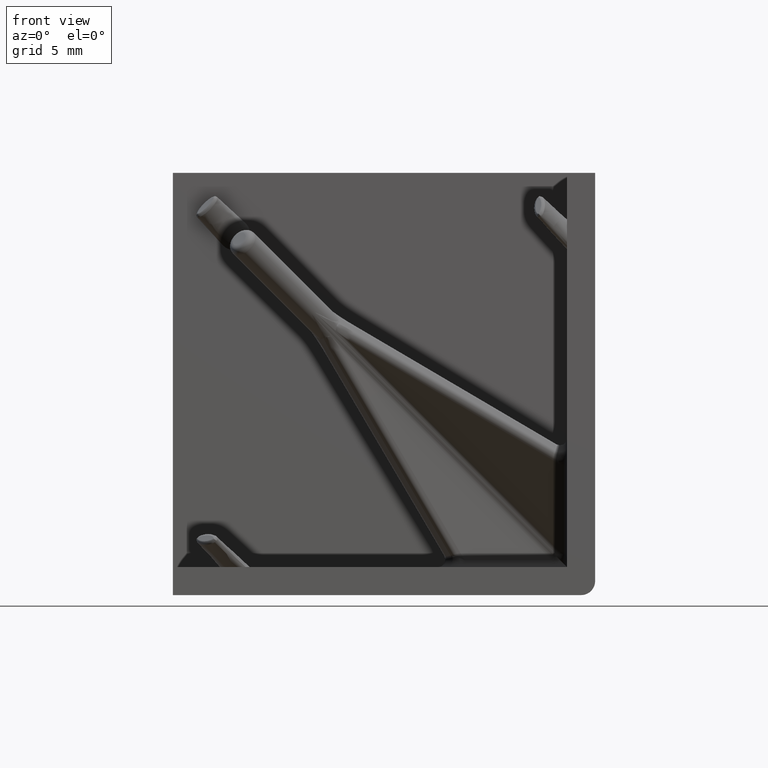
[diagram: clean part render]
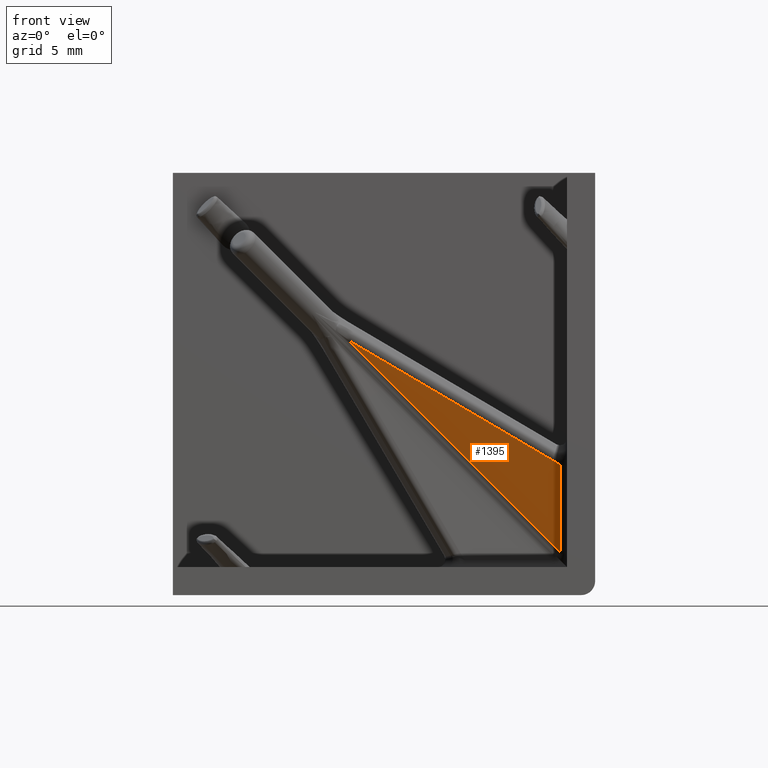
[diagram: same view with one face highlighted and labeled with its STEP entity id]
A machine part, front view. The second image highlights one B-rep face of the part: STEP entity #1395.
In plain terms, the highlighted planar face has unit normal (0, -0.7071, -0.7071).
Its self-contained STEP definition (entity closure, byte-faithful):
#29=PLANE('',#1532);
#229=FACE_OUTER_BOUND('',#328,.T.);
#328=EDGE_LOOP('',(#1108,#1109,#1110));
#446=LINE('',#3810,#518);
#447=LINE('',#3812,#519);
#448=LINE('',#3813,#520);
#518=VECTOR('',#1804,25.9829163512621);
#519=VECTOR('',#1805,8.74493186009916);
#520=VECTOR('',#1806,19.5074082027974);
#694=VERTEX_POINT('',#3808);
#695=VERTEX_POINT('',#3809);
#696=VERTEX_POINT('',#3811);
#850=EDGE_CURVE('',#694,#695,#446,.T.);
#851=EDGE_CURVE('',#695,#696,#447,.T.);
#852=EDGE_CURVE('',#696,#694,#448,.T.);
#1108=ORIENTED_EDGE('',*,*,#850,.T.);
#1109=ORIENTED_EDGE('',*,*,#851,.T.);
#1110=ORIENTED_EDGE('',*,*,#852,.T.);
#1395=ADVANCED_FACE('',(#229),#29,.T.);
#1532=AXIS2_PLACEMENT_3D('',#3807,#1802,#1803);
#1802=DIRECTION('center_axis',(0.,-0.707106781186548,-0.707106781186548));
#1803=DIRECTION('ref_axis',(0.,0.707106781186547,-0.707106781186548));
#1804=DIRECTION('',(0.577350269189624,0.577350269189627,-0.577350269189627));
#1805=DIRECTION('',(0.,-0.707106781186547,0.707106781186547));
#1806=DIRECTION('',(-0.769002401230393,-0.452015103122611,0.452015103122611));
#3807=CARTESIAN_POINT('Origin',(-9.27810060252315E-18,-0.530330085889911,
-0.530330085889911));
#3808=CARTESIAN_POINT('',(12.4987562502674,10.845928948345,-11.9065891201248));
#3809=CARTESIAN_POINT('',(27.5,25.8471726980777,-26.9078328698575));
#3810=CARTESIAN_POINT('',(28.1483314773548,26.4955041754325,-27.5561643472123));
#3811=CARTESIAN_POINT('',(27.5,19.6635720787873,-20.7242322505671));
#3812=CARTESIAN_POINT('',(27.5,19.4977132481414,-20.5583734199212));
#3813=CARTESIAN_POINT('',(-2.80135810417352,1.85261142860115,-2.91327160038098));